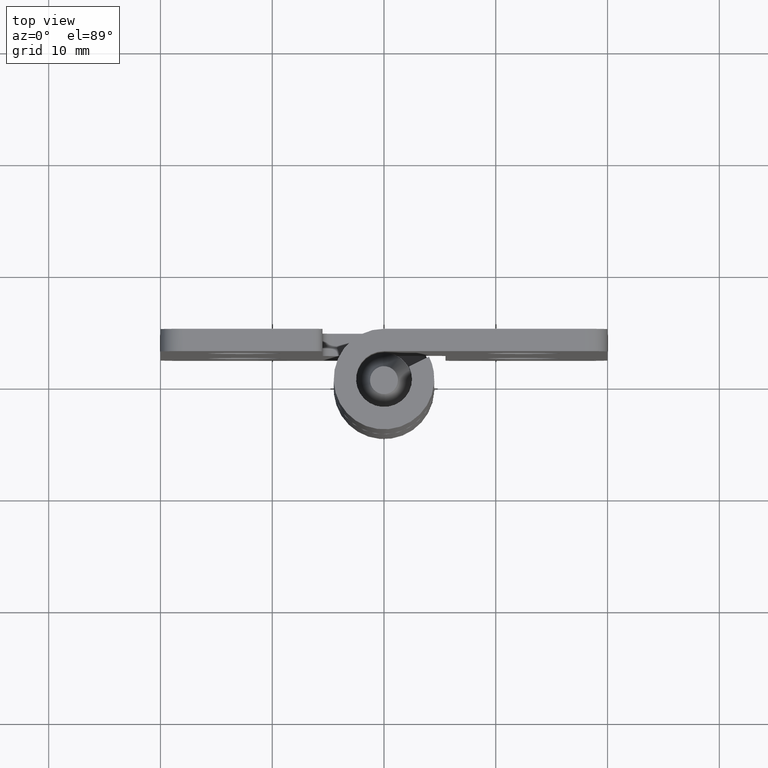
[diagram: clean part render]
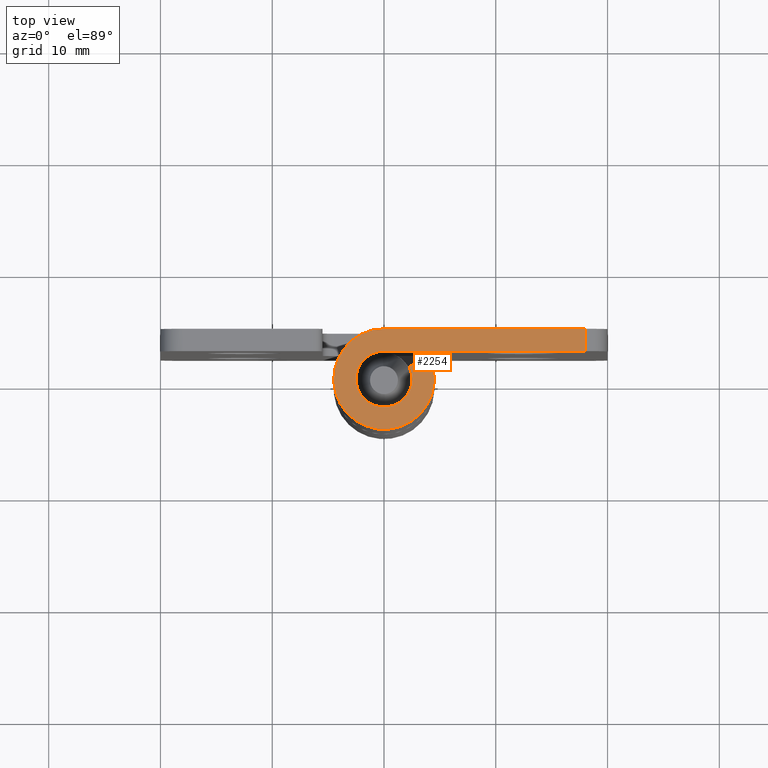
[diagram: same view with one face highlighted and labeled with its STEP entity id]
A machine part, top view. The second image highlights one B-rep face of the part: STEP entity #2254.
In plain terms, the highlighted face is a freeform B-spline surface patch.
Its self-contained STEP definition (entity closure, byte-faithful):
#1928=CARTESIAN_POINT('',(17.999999999990749,2.499999999941790,50.0));
#1929=VERTEX_POINT('',#1928);
#1950=CARTESIAN_POINT('',(17.999999999990749,4.500000000000000,50.0));
#1951=VERTEX_POINT('',#1950);
#1965=CARTESIAN_POINT('',(17.999999999990749,2.499999999941790,50.0));
#1966=CARTESIAN_POINT('',(17.999999999990749,4.500000000000000,50.0));
#1967=QUASI_UNIFORM_CURVE('',1,(#1965,#1966),.UNSPECIFIED.,.F.,.U.);
#1968=EDGE_CURVE('',#1929,#1951,#1967,.T.);
#2153=CARTESIAN_POINT('',(-5.623858613105723,4.949546832667209,50.0));
#2154=CARTESIAN_POINT('',(19.123874782347439,4.949546832667209,50.0));
#2155=CARTESIAN_POINT('',(-5.623858613105723,-4.949484013013003,50.0));
#2156=CARTESIAN_POINT('',(19.123874782347439,-4.949484013013003,50.0));
#2157=B_SPLINE_SURFACE_WITH_KNOTS('',1,1,((#2153,#2155),(#2154,#2156)),.UNSPECIFIED.,.F.,.F.,.U.,(2,2),(2,2),(0.0,24.747733395453160),(0.0,9.899030845680212),.UNSPECIFIED.);
#2158=CARTESIAN_POINT('',(-9.694619E-013,2.500000000000085,50.0));
#2159=VERTEX_POINT('',#2158);
#2160=CARTESIAN_POINT('',(-9.694619E-013,2.500000000000085,50.0));
#2161=CARTESIAN_POINT('',(17.999999999990749,2.499999999941790,50.0));
#2162=QUASI_UNIFORM_CURVE('',1,(#2160,#2161),.UNSPECIFIED.,.F.,.U.);
#2163=EDGE_CURVE('',#2159,#1929,#2162,.T.);
#2164=ORIENTED_EDGE('',*,*,#2163,.T.);
#2165=ORIENTED_EDGE('',*,*,#1968,.T.);
#2166=CARTESIAN_POINT('',(-9.064749E-012,4.500000000000000,50.0));
#2167=VERTEX_POINT('',#2166);
#2168=CARTESIAN_POINT('',(17.999999999990749,4.500000000000000,50.0));
#2169=CARTESIAN_POINT('',(-9.064749E-012,4.500000000000000,50.0));
#2170=QUASI_UNIFORM_CURVE('',1,(#2168,#2169),.UNSPECIFIED.,.F.,.U.);
#2171=EDGE_CURVE('',#1951,#2167,#2170,.T.);
#2172=ORIENTED_EDGE('',*,*,#2171,.T.);
#2173=CARTESIAN_POINT('',(4.031128874146665,1.999999999986860,50.0));
#2174=VERTEX_POINT('',#2173);
#2175=CARTESIAN_POINT('',(-9.064749E-012,4.500000000000000,50.0));
#2176=CARTESIAN_POINT('',(-0.242470766756466,4.500003892137256,50.000000000000043));
#2177=CARTESIAN_POINT('',(-0.803215336116601,4.454618644774230,49.999999999999943));
#2178=CARTESIAN_POINT('',(-1.582175041053737,4.240920221707372,50.000000000000043));
#2179=CARTESIAN_POINT('',(-2.347153425391687,3.866981212483402,49.999999999999957));
#2180=CARTESIAN_POINT('',(-2.973908073557501,3.408610192088074,50.000000000000142));
#2181=CARTESIAN_POINT('',(-3.457004849810677,2.902841879840021,49.999999999999723));
#2182=CARTESIAN_POINT('',(-3.821695247269691,2.398567502531596,49.999999999999602));
#2183=CARTESIAN_POINT('',(-4.091121610138811,1.905189125167861,50.000000000001997));
#2184=CARTESIAN_POINT('',(-4.320821265562420,1.310312236131560,49.999999999996568));
#2185=CARTESIAN_POINT('',(-4.478274297394123,0.628862817267312,50.000000000001180));
#2186=CARTESIAN_POINT('',(-4.520319779317863,-0.130857525456636,50.000000000001243));
#2187=CARTESIAN_POINT('',(-4.435490152037976,-0.855738105695941,49.999999999996817));
#2188=CARTESIAN_POINT('',(-4.250409559553074,-1.529672262847150,50.000000000001812));
#2189=CARTESIAN_POINT('',(-4.008841277423674,-2.071223890975177,49.999999999999481));
#2190=CARTESIAN_POINT('',(-3.693777891499755,-2.589861141277042,50.000000000000057));
#2191=CARTESIAN_POINT('',(-3.242474247835212,-3.163088369248442,50.0));
#2192=CARTESIAN_POINT('',(-2.580649781336400,-3.728060401167771,50.0));
#2193=CARTESIAN_POINT('',(-1.736757880748911,-4.183049077902184,50.000000000000043));
#2194=CARTESIAN_POINT('',(-0.818794208943600,-4.464557327400151,50.000000000000021));
#2195=CARTESIAN_POINT('',(0.110197393046943,-4.529808666102563,49.999999999999972));
#2196=CARTESIAN_POINT('',(0.893973492306334,-4.425738349270797,50.000000000000028));
#2197=CARTESIAN_POINT('',(1.522601122496494,-4.249490679409656,49.999999999999993));
#2198=CARTESIAN_POINT('',(2.122046464207371,-3.989142118360551,50.000000000000043));
#2199=CARTESIAN_POINT('',(2.699416808614680,-3.622016850907991,50.0));
#2200=CARTESIAN_POINT('',(3.248692954167147,-3.142309583423243,49.999999999999993));
#2201=CARTESIAN_POINT('',(3.685246223982167,-2.614701616912631,50.000000000000043));
#2202=CARTESIAN_POINT('',(4.048951191370171,-2.000473667312601,50.000000000000043));
#2203=CARTESIAN_POINT('',(4.296390408248328,-1.395300061049154,50.000000000000213));
#2204=CARTESIAN_POINT('',(4.481613432392975,-0.627264283756258,49.999999999998579));
#2205=CARTESIAN_POINT('',(4.524131954844854,0.149253874909567,50.000000000003617));
#2206=CARTESIAN_POINT('',(4.399901344830040,1.083361213770332,49.999999999992482));
#2207=CARTESIAN_POINT('',(4.199629602364619,1.660639091997404,50.000000000008690));
#2208=CARTESIAN_POINT('',(4.031128874146665,1.999999999986860,50.0));
#2209=B_SPLINE_CURVE_WITH_KNOTS('',3,(#2175,#2176,#2177,#2178,#2179,#2180,#2181,#2182,#2183,#2184,#2185,#2186,#2187,#2188,#2189,#2190,#2191,#2192,#2193,#2194,#2195,#2196,#2197,#2198,#2199,#2200,#2201,#2202,#2203,#2204,#2205,#2206,#2207,#2208),.UNSPECIFIED.,.F.,.U.,(4,1,1,1,1,1,1,1,1,1,1,1,1,1,1,1,1,1,1,1,1,1,1,1,1,1,1,1,1,1,1,4),(0.000000185202754,0.727421659233247,1.682209615179037,2.409672657425301,3.273522803127214,4.000968073022357,4.501089062892504,5.137628766778789,5.683217519625984,6.410630924080767,7.229007605961076,7.956455562247941,8.592981096418360,9.320432081756886,9.729633166256443,10.411622705328750,11.502802887090430,12.321128622474021,13.275928017588591,14.367101096556221,15.094557706912999,15.640141699687231,16.322120016545639,17.049568747840119,17.686074600305020,18.504441202627149,19.095513329184090,19.822956429437099,20.459481962481110,21.459727010893371,22.141705328241319,23.278342379552239),.UNSPECIFIED.);
#2210=EDGE_CURVE('',#2167,#2174,#2209,.T.);
#2211=ORIENTED_EDGE('',*,*,#2210,.T.);
#2212=CARTESIAN_POINT('',(2.239516041188695,1.111111111103810,50.0));
#2213=VERTEX_POINT('',#2212);
#2214=CARTESIAN_POINT('',(4.031128874146665,1.999999999986860,50.0));
#2215=CARTESIAN_POINT('',(2.239516041188695,1.111111111103810,50.0));
#2216=QUASI_UNIFORM_CURVE('',1,(#2214,#2215),.UNSPECIFIED.,.F.,.U.);
#2217=EDGE_CURVE('',#2174,#2213,#2216,.T.);
#2218=ORIENTED_EDGE('',*,*,#2217,.T.);
#2219=CARTESIAN_POINT('',(-9.694619E-013,2.500000000000085,50.0));
#2220=CARTESIAN_POINT('',(-0.210484718174301,2.500048209796119,49.999999999999993));
#2221=CARTESIAN_POINT('',(-0.606172956081243,2.449735222171884,50.000000000000050));
#2222=CARTESIAN_POINT('',(-1.081217354661891,2.268900393261390,49.999999999999908));
#2223=CARTESIAN_POINT('',(-1.457422863242838,2.043091892185408,50.000000000000263));
#2224=CARTESIAN_POINT('',(-1.724183616072330,1.821993275648114,49.999999999999901));
#2225=CARTESIAN_POINT('',(-1.984950087965338,1.534817994895326,50.000000000000043));
#2226=CARTESIAN_POINT('',(-2.243999475500656,1.148672917457897,49.999999999999979));
#2227=CARTESIAN_POINT('',(-2.461237796214909,0.586212827282793,50.000000000000057));
#2228=CARTESIAN_POINT('',(-2.517613085655094,0.028181653776278,49.999999999999957));
#2229=CARTESIAN_POINT('',(-2.468896405171305,-0.450300780176739,49.999999999999943));
#2230=CARTESIAN_POINT('',(-2.348474561357681,-0.916715024594568,50.000000000000270));
#2231=CARTESIAN_POINT('',(-2.126878801267851,-1.347433028149097,49.999999999999247));
#2232=CARTESIAN_POINT('',(-1.820154331866575,-1.728799861416482,50.000000000002153));
#2233=CARTESIAN_POINT('',(-1.544713159051927,-1.978790808825768,49.999999999994827));
#2234=CARTESIAN_POINT('',(-1.213083835810729,-2.196232193596078,50.000000000007383));
#2235=CARTESIAN_POINT('',(-0.822225311853941,-2.377369111462301,49.999999999995353));
#2236=CARTESIAN_POINT('',(-0.345170710824363,-2.495089632799394,50.000000000001592));
#2237=CARTESIAN_POINT('',(0.120073419441996,-2.508909319859058,49.999999999999730));
#2238=CARTESIAN_POINT('',(0.538014448897893,-2.451295118190493,50.000000000000007));
#2239=CARTESIAN_POINT('',(0.943088281335844,-2.331087128482630,49.999999999999957));
#2240=CARTESIAN_POINT('',(1.409594553072075,-2.090960808839089,50.000000000000050));
#2241=CARTESIAN_POINT('',(1.804627635175733,-1.756380619636476,50.000000000000007));
#2242=CARTESIAN_POINT('',(2.094952642696746,-1.382915541230996,50.0));
#2243=CARTESIAN_POINT('',(2.290796780869350,-1.028077681584837,49.999999999999787));
#2244=CARTESIAN_POINT('',(2.458414789444983,-0.558485621028291,50.000000000001243));
#2245=CARTESIAN_POINT('',(2.522691845140554,-0.026987263549343,49.999999999997343));
#2246=CARTESIAN_POINT('',(2.455526088131729,0.569803945134832,50.000000000004057));
#2247=CARTESIAN_POINT('',(2.333118702393792,0.922579809549386,49.999999999996838));
#2248=CARTESIAN_POINT('',(2.239516041188695,1.111111111103810,50.0));
#2249=B_SPLINE_CURVE_WITH_KNOTS('',3,(#2219,#2220,#2221,#2222,#2223,#2224,#2225,#2226,#2227,#2228,#2229,#2230,#2231,#2232,#2233,#2234,#2235,#2236,#2237,#2238,#2239,#2240,#2241,#2242,#2243,#2244,#2245,#2246,#2247,#2248),.UNSPECIFIED.,.F.,.U.,(4,1,1,1,1,1,1,1,1,1,1,1,1,1,1,1,1,1,1,1,1,1,1,1,1,1,1,4),(0.000000263165390,0.631443821344725,1.187150022049741,1.515517852709355,1.944915531254003,2.222768109464655,2.677437727469073,3.334113052519061,4.016110376391360,4.344479916517646,4.773879277757443,5.455876174673334,5.784243251167737,6.238900054071041,6.567214972341572,6.971356439266729,7.527057186465546,8.032240757788454,8.360607138208732,8.790006904782930,9.295185986261524,9.926618681018001,10.330763817490899,10.709643153551809,11.139047285337400,11.821044780310130,12.300958325643430,12.932412433119330),.UNSPECIFIED.);
#2250=EDGE_CURVE('',#2159,#2213,#2249,.T.);
#2251=ORIENTED_EDGE('',*,*,#2250,.F.);
#2252=EDGE_LOOP('',(#2164,#2165,#2172,#2211,#2218,#2251));
#2253=FACE_OUTER_BOUND('',#2252,.T.);
#2254=ADVANCED_FACE('',(#2253),#2157,.F.);